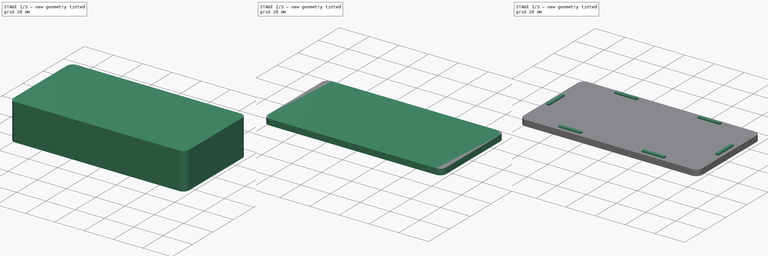
[diagram: build sequence overview — one tinted view per stage of 3, left to right]
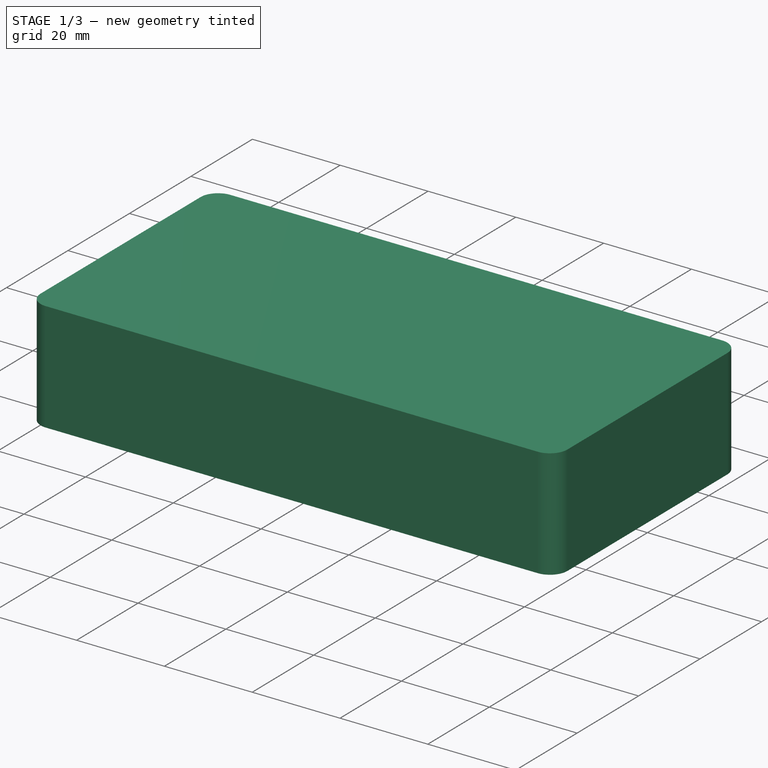
[diagram: stage 1 of 3 — iso view after this stage's code; geometry added in this stage tinted green]
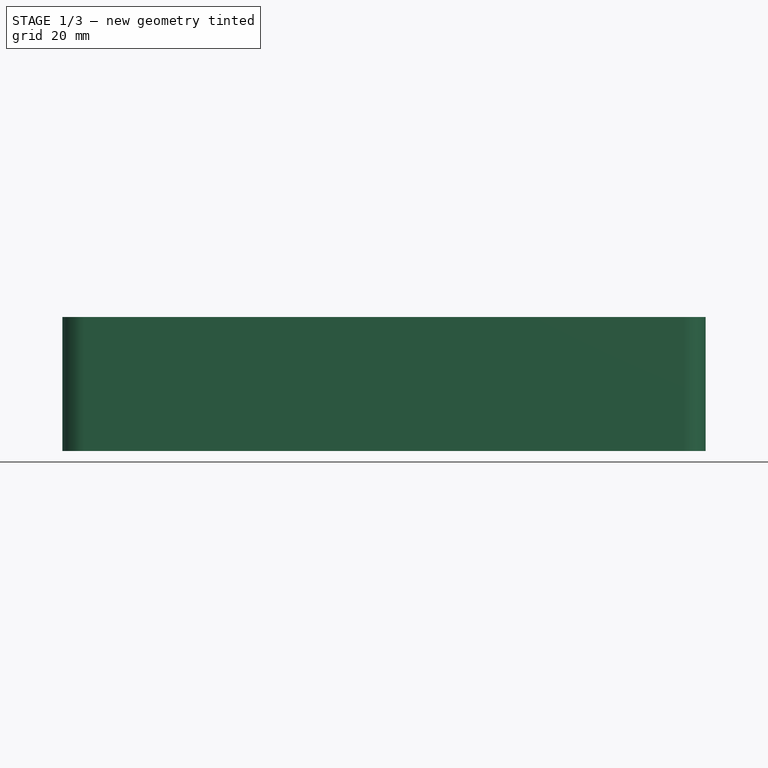
[diagram: stage 1 of 3 — front view after this stage's code; geometry added in this stage tinted green]
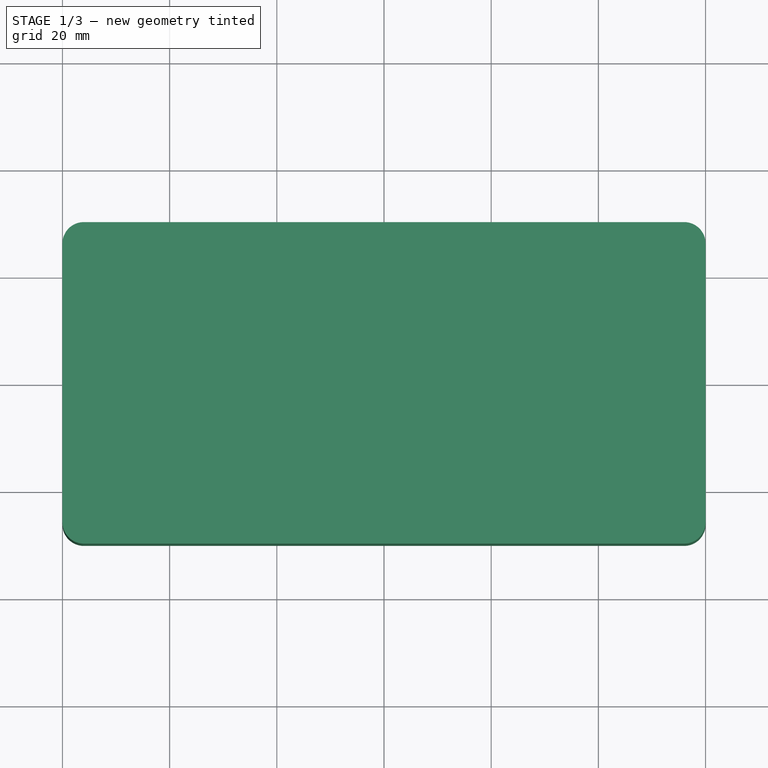
[diagram: stage 1 of 3 — top view after this stage's code; geometry added in this stage tinted green]
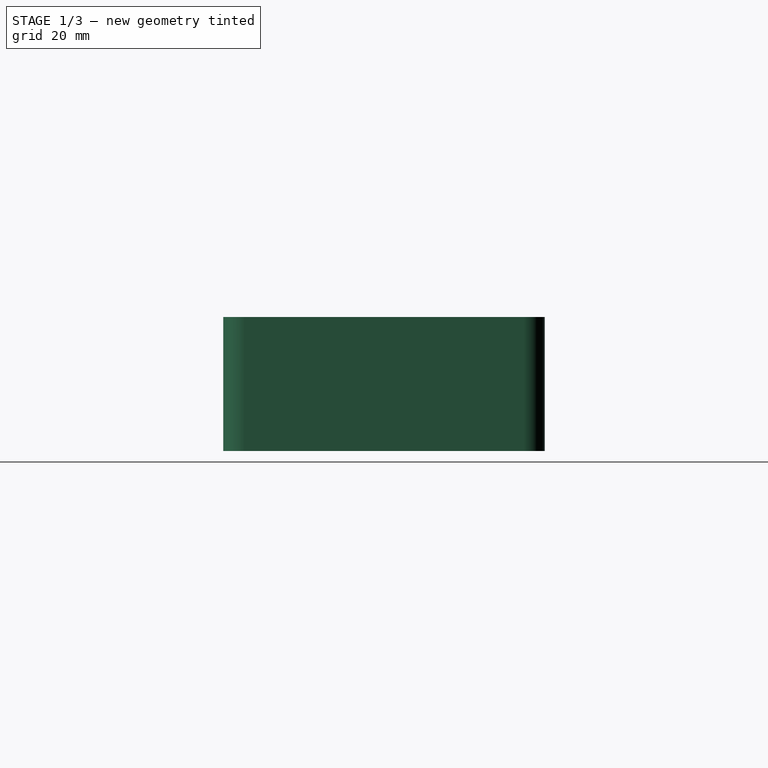
[diagram: stage 1 of 3 — right view after this stage's code; geometry added in this stage tinted green]
FCSTD DOCUMENT  (FreeCAD 0.20R29410 (Git))
Label: Container
License: All rights reserved
LicenseURL: http://en.wikipedia.org/wiki/All_rights_reserved
objects: Sketcher::SketchObject×4, PartDesign::Pad×3, PartDesign::Body×2, PartDesign::Thickness×1, PartDesign::SubShapeBinder×1, PartDesign::Mirrored×1, PartDesign::Pocket×1
note: 18 computed .brp shape members not serialized (recipe doc carries the construction recipe); baked Part::Feature solids carry a one-line shape summary decoded from their .brp

FEATURE [Sketcher::SketchObject] Sketch
  FullyConstrained = true
  MapMode = 5
  Support = -> [XY_Plane]
  sketch-geometry (10):
    g0: ArcOfCircle CenterX=-56 CenterY=26 CenterZ=0 NormalX=0 NormalY=0 NormalZ=1 AngleXU=0 Radius=4 StartAngle=1.5708 EndAngle=3.14159
    g1: LineSegment StartX=-56 StartY=30 StartZ=0 EndX=56 EndY=30 EndZ=0
    g2: ArcOfCircle CenterX=56 CenterY=26 CenterZ=0 NormalX=0 NormalY=0 NormalZ=1 AngleXU=0 Radius=4 StartAngle=0 EndAngle=1.5708
    g3: LineSegment StartX=60 StartY=26 StartZ=0 EndX=60 EndY=-26 EndZ=0
    g4: ArcOfCircle CenterX=56 CenterY=-26 CenterZ=0 NormalX=0 NormalY=0 NormalZ=1 AngleXU=0 Radius=4 StartAngle=4.71239 EndAngle=6.28319
    g5: LineSegment StartX=56 StartY=-30 StartZ=0 EndX=-56 EndY=-30 EndZ=0
    g6: ArcOfCircle CenterX=-56 CenterY=-26 CenterZ=0 NormalX=0 NormalY=0 NormalZ=1 AngleXU=0 Radius=4 StartAngle=3.14159 EndAngle=4.71239
    g7: LineSegment StartX=-60 StartY=-26 StartZ=0 EndX=-60 EndY=26 EndZ=0
    g8: GeomPoint X=-60 Y=30 Z=0
    g9: GeomPoint X=60 Y=-30 Z=0
  constraints (22):
    c: Tangent(g0,g1) = 1.5708
    c: Tangent(g1,g2) = 1.5708
    c: Tangent(g2,g3) = 1.5708
    c: Tangent(g3,g4) = 1.5708
    c: Tangent(g4,g5) = 1.5708
    c: Tangent(g5,g6) = 1.5708
    c: Tangent(g6,g7) = 1.5708
    c: Tangent(g7,g0) = 1.5708
    c: Horizontal(g1)
    c: Horizontal(g5)
    c: Vertical(g3)
    c: Vertical(g7)
    c: Equal(g2,g4)
    c: PointOnObject(g8,g1)
    c: PointOnObject(g8,g7)
    c: PointOnObject(g9,g3)
    c: PointOnObject(g9,g5)
    c: Symmetric(g0,g6,g-1)
    c: Symmetric(g0,g2,g-2)
    c: Radius(g0) = 4
    c: DistanceX(g0,g2) = 120
    c: DistanceY(g5,g0) = 60
FEATURE [PartDesign::Pad] Pad
  Direction = (0,0,1)
  Length = 25
  Length2 = 10
  Profile = -> Sketch
  ReferenceAxis = -> Sketch [N_Axis]
  Type = 0
FEATURE [PartDesign::Thickness] Thickness
  Base = -> Pad [Face9]
  BaseFeature = -> Pad
  Intersection = false
  Join = 0
  Mode = 0
  Reversed = true
  SupportTransform = false
  Value = 2
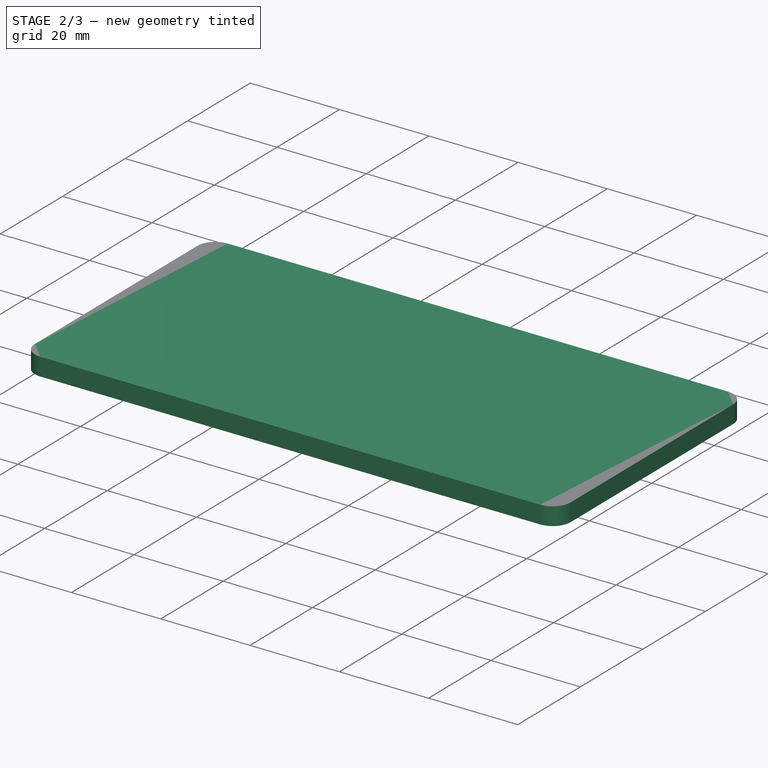
[diagram: stage 2 of 3 — iso view after this stage's code; geometry added in this stage tinted green]
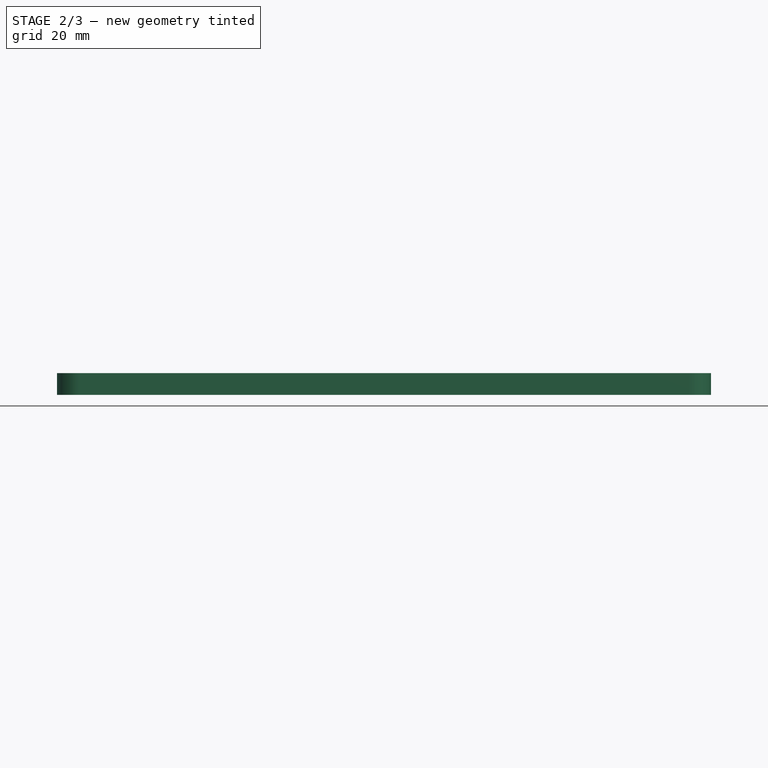
[diagram: stage 2 of 3 — front view after this stage's code; geometry added in this stage tinted green]
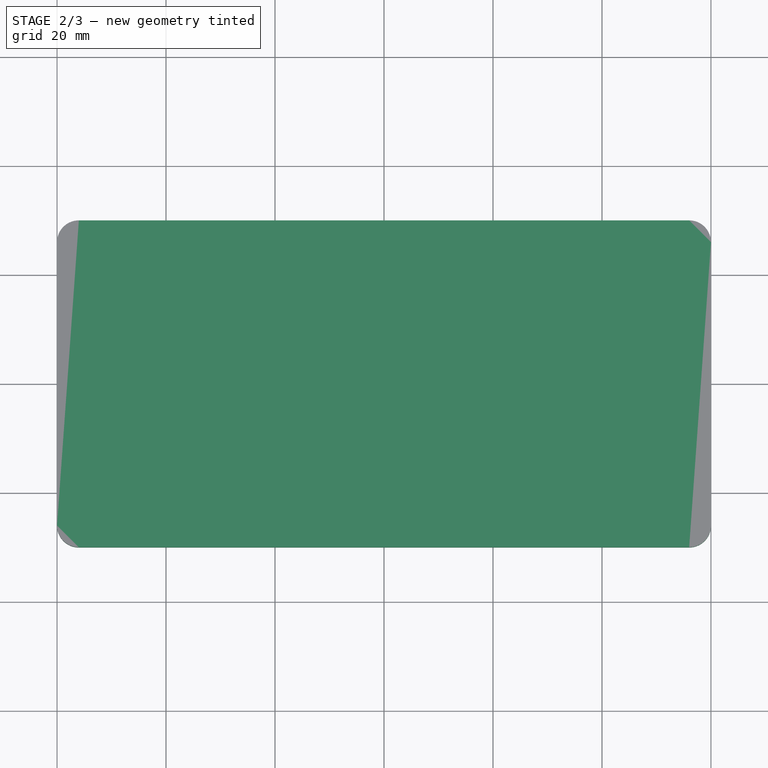
[diagram: stage 2 of 3 — top view after this stage's code; geometry added in this stage tinted green]
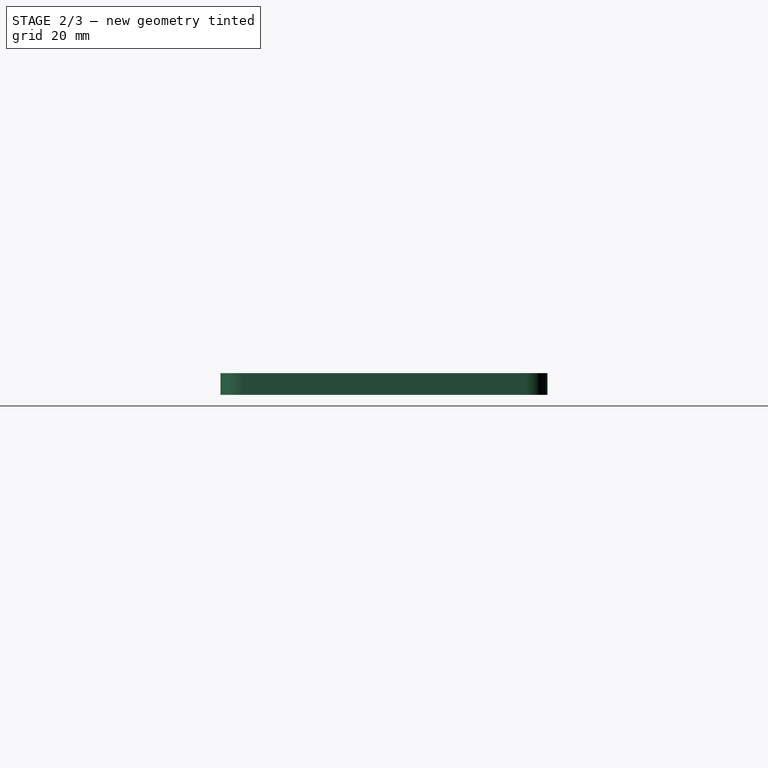
[diagram: stage 2 of 3 — right view after this stage's code; geometry added in this stage tinted green]
FEATURE [PartDesign::SubShapeBinder] Binder
  BindCopyOnChange = 0
  BindMode = 0
  ClaimChildren = false
  Context = -> Body001 [Binder.]
  Fuse = false
  MakeFace = true
  OffsetFill = false
  OffsetIntersection = false
  OffsetJoinType = 0
  OffsetOpenResult = false
  PartialLoad = false
  Relative = true
  Support = -> [Body[Thickness.Face10]]
  _Version = 2
FEATURE [Sketcher::SketchObject] Sketch001
  ExternalGeometry = -> [Binder]
  FullyConstrained = true
  MapMode = 5
  Support = -> [XY_Plane001]
  sketch-geometry (10):
    g0: ArcOfCircle CenterX=-56 CenterY=26 CenterZ=0 NormalX=0 NormalY=0 NormalZ=1 AngleXU=0 Radius=4 StartAngle=1.5708 EndAngle=3.14159
    g1: LineSegment StartX=-56 StartY=30 StartZ=0 EndX=56 EndY=30 EndZ=0
    g2: ArcOfCircle CenterX=56 CenterY=26 CenterZ=0 NormalX=0 NormalY=0 NormalZ=1 AngleXU=0 Radius=4 StartAngle=0 EndAngle=1.5708
    g3: LineSegment StartX=60 StartY=26 StartZ=0 EndX=60 EndY=-26 EndZ=0
    g4: ArcOfCircle CenterX=56 CenterY=-26 CenterZ=0 NormalX=0 NormalY=0 NormalZ=1 AngleXU=0 Radius=4 StartAngle=4.71239 EndAngle=6.28319
    g5: LineSegment StartX=56 StartY=-30 StartZ=0 EndX=-56 EndY=-30 EndZ=0
    g6: ArcOfCircle CenterX=-56 CenterY=-26 CenterZ=0 NormalX=0 NormalY=0 NormalZ=1 AngleXU=0 Radius=4 StartAngle=3.14159 EndAngle=4.71239
    g7: LineSegment StartX=-60 StartY=-26 StartZ=0 EndX=-60 EndY=26 EndZ=0
    g8: GeomPoint X=-60 Y=30 Z=0
    g9: GeomPoint X=60 Y=-30 Z=0
  constraints (21):
    c: Tangent(g0,g1) = 1.5708
    c: Tangent(g1,g2) = 1.5708
    c: Tangent(g2,g3) = 1.5708
    c: Tangent(g3,g4) = 1.5708
    c: Tangent(g4,g5) = 1.5708
    c: Tangent(g5,g6) = 1.5708
    c: Tangent(g6,g7) = 1.5708
    c: Tangent(g7,g0) = 1.5708
    c: Horizontal(g5)
    c: Vertical(g3)
    c: Equal(g0,g2)
    c: Equal(g2,g4)
    c: Equal(g4,g6)
    c: PointOnObject(g8,g1)
    c: PointOnObject(g8,g7)
    c: PointOnObject(g9,g3)
    c: PointOnObject(g9,g5)
    c: Coincident(g1,g-4)
    c: Coincident(g0,g-4)
    c: Coincident(g0,g-3)
    c: Coincident(g6,g-3)
FEATURE [PartDesign::Pad] Pad001
  Direction = (0,0,1)
  Length = 4
  Length2 = 10
  Profile = -> Sketch001
  ReferenceAxis = -> Sketch001 [N_Axis]
  Reversed = true
  Type = 0
FEATURE [PartDesign::Body] Body001  label="Lid"
  Group = -> [Binder,Sketch001,Pad001,Sketch002,Pad002,Mirrored]
  Origin = -> Origin001
  Tip = -> Mirrored
FEATURE [Sketcher::SketchObject] Sketch003
  ExternalGeometry = -> [Thickness]
  FullyConstrained = true
  MapMode = 5
  Placement = pos=(-60,0,0) rot=(0.57735,-0.57735,-0.57735;2.0944rad)
  Support = -> [Thickness]
  sketch-geometry (6):
    g0: LineSegment StartX=-18 StartY=19 StartZ=0 EndX=18 EndY=19 EndZ=0
    g1: LineSegment StartX=18 StartY=19 StartZ=0 EndX=18 EndY=6 EndZ=0
    g2: LineSegment StartX=18 StartY=6 StartZ=0 EndX=-18 EndY=6 EndZ=0
    g3: LineSegment StartX=-18 StartY=6 StartZ=0 EndX=-18 EndY=19 EndZ=0
    g4: GeomPoint X=0 Y=25 Z=0
    g5: GeomPoint X=0 Y=12.5 Z=0
  constraints (14):
    c: Coincident(g0,g1)
    c: Coincident(g1,g2)
    c: Coincident(g2,g3)
    c: Coincident(g3,g0)
    c: Horizontal(g0)
    c: Horizontal(g2)
    c: Vertical(g1)
    c: Vertical(g3)
    c: PointOnObject(g4,g-5)
    c: PointOnObject(g4,g-2)
    c: Symmetric(g1,g0,g5)
    c: Symmetric(g4,g-1,g5)
    c: DistanceX(g-5,g0) = 8
    c: DistanceY(g0,g-5) = 6
FEATURE [PartDesign::Pocket] Pocket
  BaseFeature = -> Thickness
  Direction = (1,0,0)
  Length = 5
  Length2 = 5
  Profile = -> Sketch003
  ReferenceAxis = -> Sketch003 [N_Axis]
  Type = 1
FEATURE [PartDesign::Body] Body  label="Base"
  Group = -> [Sketch,Pad,Thickness,Sketch003,Pocket]
  Origin = -> Origin
  Tip = -> Pocket
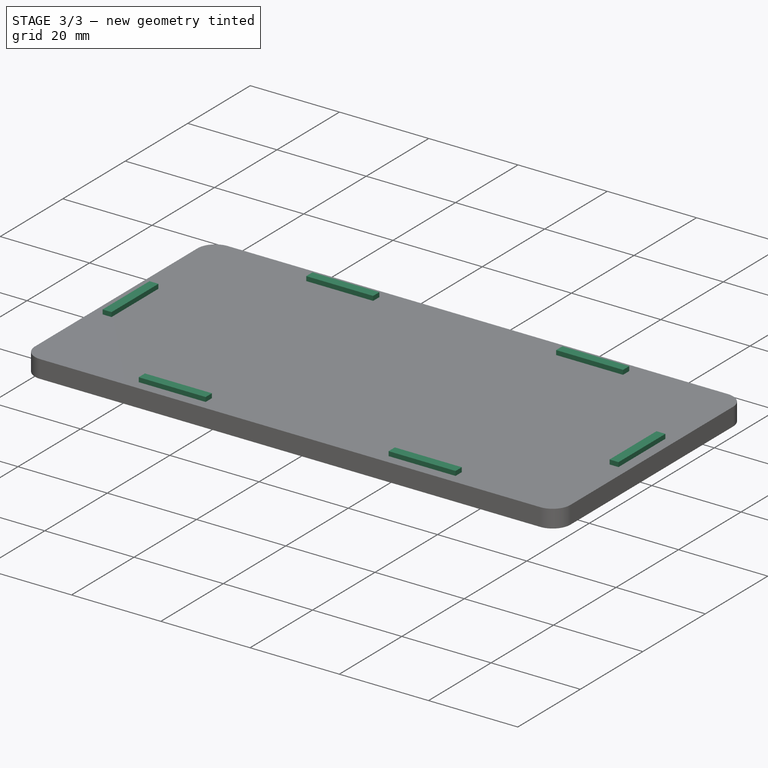
[diagram: stage 3 of 3 — iso view after this stage's code; geometry added in this stage tinted green]
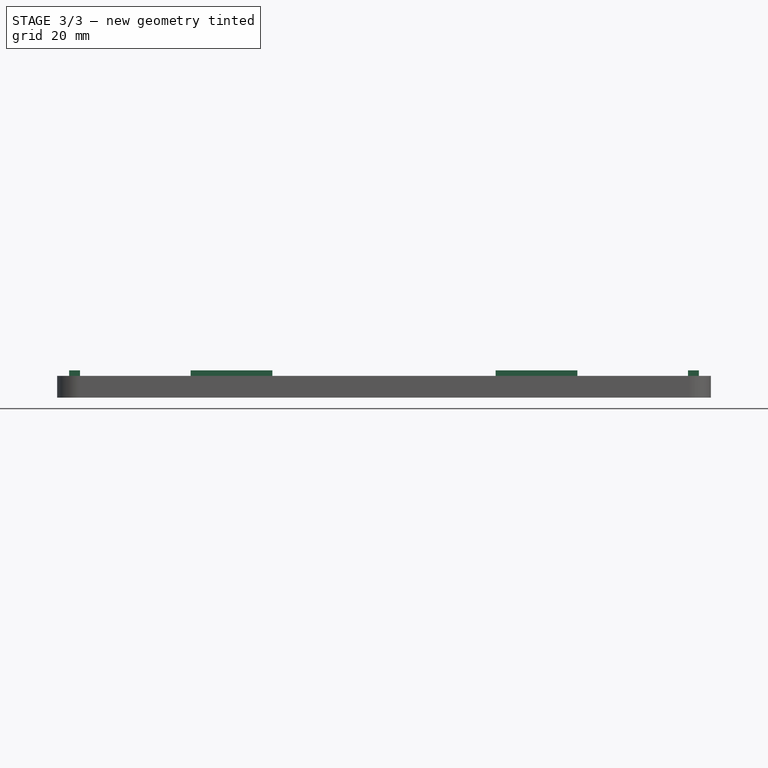
[diagram: stage 3 of 3 — front view after this stage's code; geometry added in this stage tinted green]
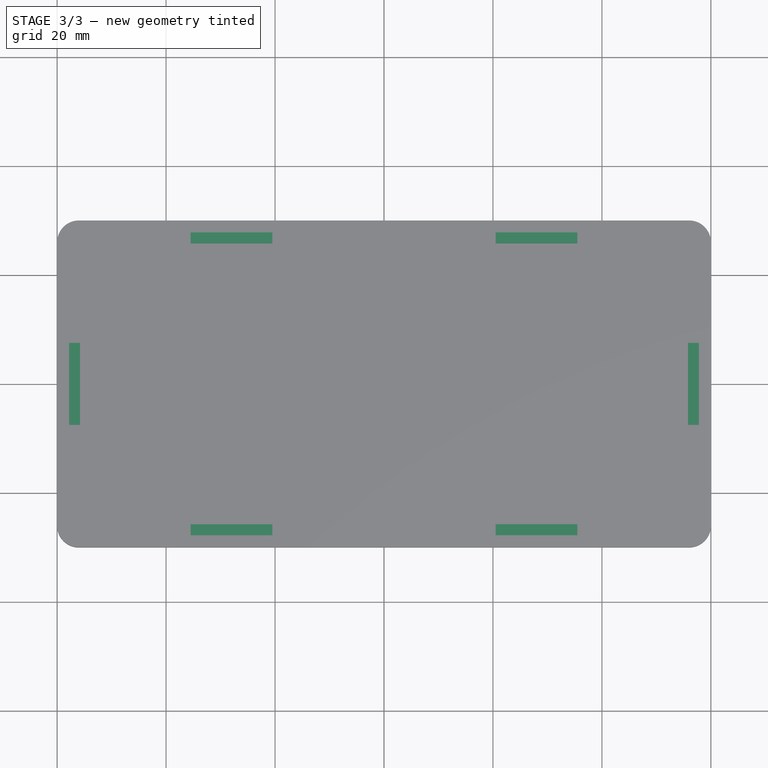
[diagram: stage 3 of 3 — top view after this stage's code; geometry added in this stage tinted green]
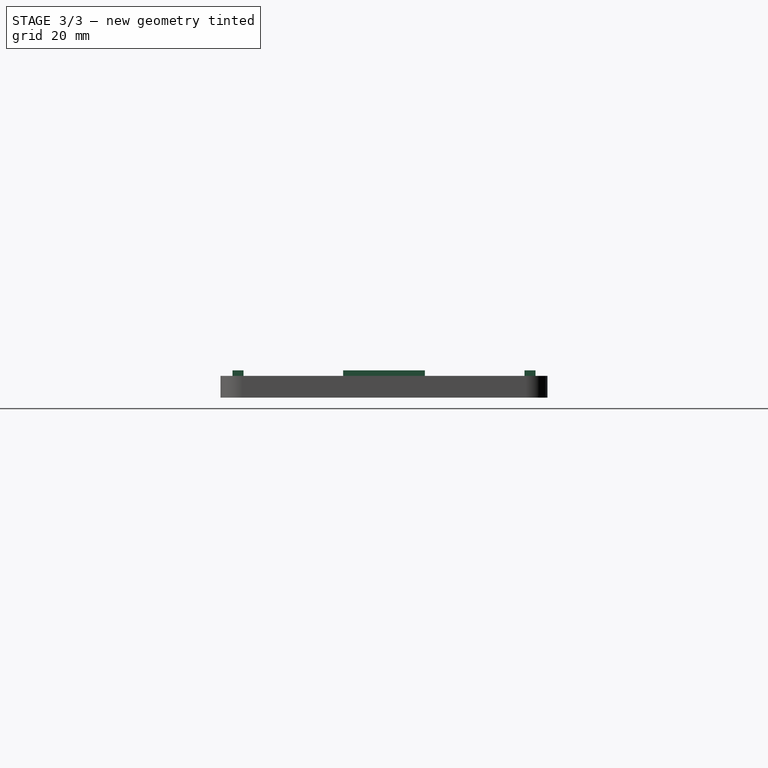
[diagram: stage 3 of 3 — right view after this stage's code; geometry added in this stage tinted green]
FEATURE [Sketcher::SketchObject] Sketch002
  ExternalGeometry = -> [Binder]
  FullyConstrained = true
  MapMode = 5
  Support = -> [Pad001]
  sketch-geometry (16):
    g0: LineSegment StartX=-35.5 StartY=27.8 StartZ=0 EndX=-20.5 EndY=27.8 EndZ=0
    g1: LineSegment StartX=-20.5 StartY=27.8 StartZ=0 EndX=-20.5 EndY=25.8 EndZ=0
    g2: LineSegment StartX=-20.5 StartY=25.8 StartZ=0 EndX=-35.5 EndY=25.8 EndZ=0
    g3: LineSegment StartX=-35.5 StartY=25.8 StartZ=0 EndX=-35.5 EndY=27.8 EndZ=0
    g4: GeomPoint X=0 Y=28 Z=0
    g5: LineSegment StartX=-57.8 StartY=7.5 StartZ=0 EndX=-55.8 EndY=7.5 EndZ=0
    g6: LineSegment StartX=-55.8 StartY=7.5 StartZ=0 EndX=-55.8 EndY=-7.5 EndZ=0
    g7: LineSegment StartX=-55.8 StartY=-7.5 StartZ=0 EndX=-57.8 EndY=-7.5 EndZ=0
    g8: LineSegment StartX=-57.8 StartY=-7.5 StartZ=0 EndX=-57.8 EndY=7.5 EndZ=0
    g9: LineSegment StartX=-35.5 StartY=-25.8 StartZ=0 EndX=-20.5 EndY=-25.8 EndZ=0
    g10: LineSegment StartX=-20.5 StartY=-25.8 StartZ=0 EndX=-20.5 EndY=-27.8 EndZ=0
    g11: LineSegment StartX=-20.5 StartY=-27.8 StartZ=0 EndX=-35.5 EndY=-27.8 EndZ=0
    g12: LineSegment StartX=-35.5 StartY=-27.8 StartZ=0 EndX=-35.5 EndY=-25.8 EndZ=0
    g13: GeomPoint X=-28 Y=28 Z=0
    g14: GeomPoint X=-28 Y=27.8 Z=0
    g15: GeomPoint X=-57.8 Y=0 Z=0
  constraints (40):
    c: Coincident(g0,g1)
    c: Coincident(g1,g2)
    c: Coincident(g2,g3)
    c: Coincident(g3,g0)
    c: Horizontal(g0)
    c: Horizontal(g2)
    c: Vertical(g1)
    c: Vertical(g3)
    c: PointOnObject(g4,g-4)
    c: Coincident(g5,g6)
    c: Coincident(g6,g7)
    c: Coincident(g7,g8)
    c: Coincident(g8,g5)
    c: Horizontal(g5)
    c: Horizontal(g7)
    c: Vertical(g6)
    c: Vertical(g8)
    c: Coincident(g9,g10)
    c: Coincident(g10,g11)
    c: Coincident(g11,g12)
    c: Coincident(g12,g9)
    c: Horizontal(g9)
    c: Horizontal(g11)
    c: Vertical(g10)
    c: Vertical(g12)
    c: Equal(g5,g3)
    c: Equal(g3,g12)
    c: Equal(g9,g6)
    c: Equal(g6,g2)
    c: DistanceX(g0,g0) = 15
    c: DistanceY(g3,g3) = 2
    c: Symmetric(g4,g-4,g13)
    c: Symmetric(g0,g0,g14)
    c: Vertical(g14,g13)
    c: DistanceY(g14,g13) = 0.2
    c: Symmetric(g9,g2,g-1)
    c: Symmetric(g7,g5,g15)
    c: PointOnObject(g15,g-1)
    c: DistanceX(g-3,g5) = 0.2
    c: PointOnObject(g4,g-2)
FEATURE [PartDesign::Pad] Pad002
  BaseFeature = -> Pad001
  Direction = (0,0,1)
  Length = 1
  Length2 = 10
  Profile = -> Sketch002
  ReferenceAxis = -> Sketch002 [N_Axis]
  Type = 0
FEATURE [PartDesign::Mirrored] Mirrored
  BaseFeature = -> Pad002
  MirrorPlane = -> Sketch002 [V_Axis]
  Originals = -> [Pad002]
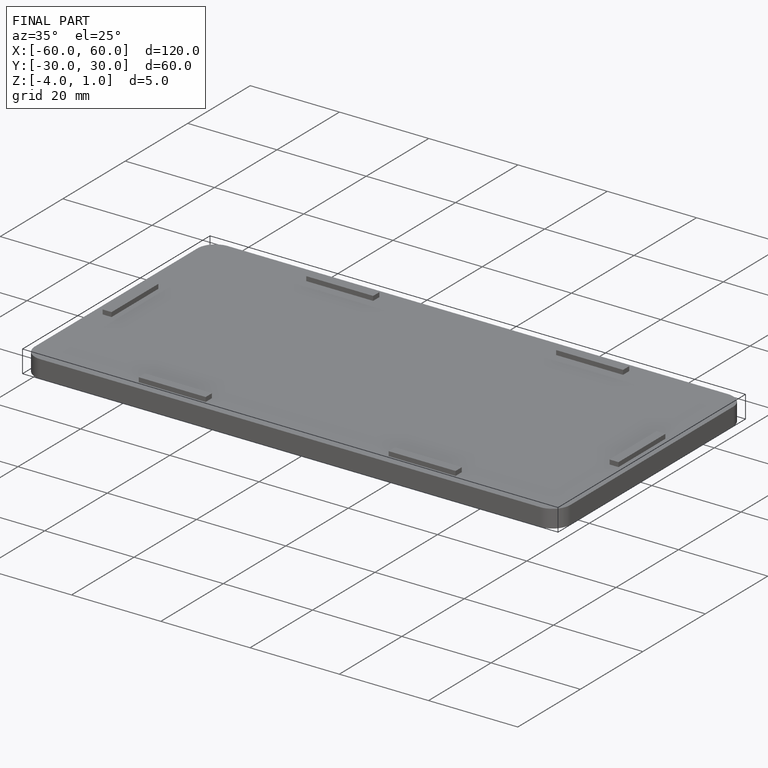
[diagram: finished part — iso view with bounding-box wireframe]
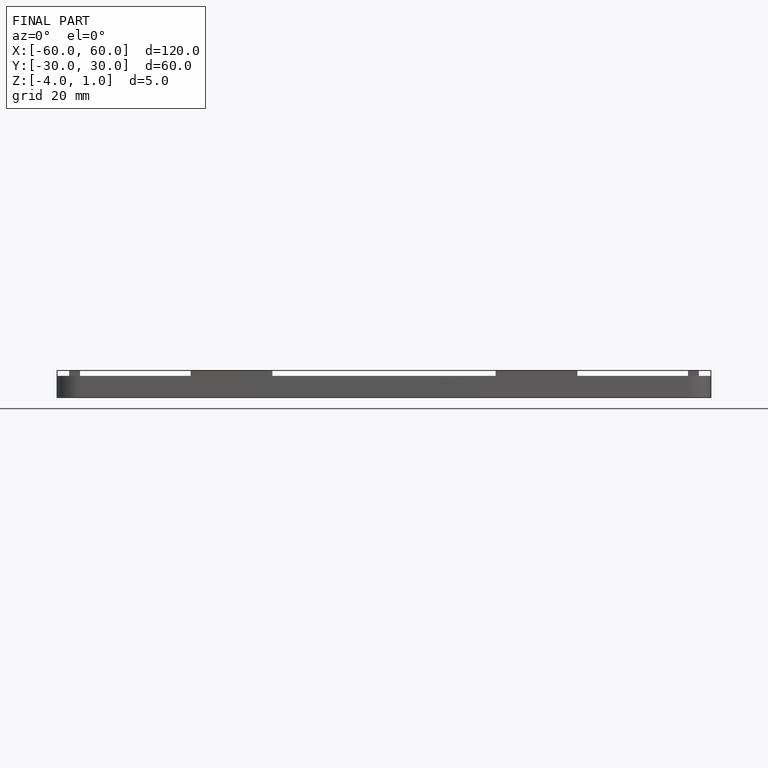
[diagram: finished part — front view with bounding-box wireframe]
